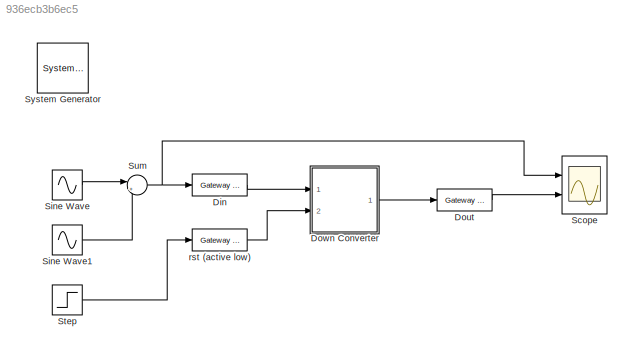
MODEL slx_936ecb3b6ec5
KIND model
CONFIG AbsTol = auto
CONFIG EnableMultiTasking = off
CONFIG FixedStep = auto
CONFIG MaxStep = auto
CONFIG MinStep = auto
CONFIG RelTol = 1e-3
CONFIG SampleTimeConstraint = Unconstrained
CONFIG SolverName = VariableStepDiscrete
CONFIG StartTime = 0.0
CONFIG StopTime = 500
BLOCK [Reference]  System Generator  REF=xbsIndex_r4/ System Generator
  AttributesFormatString = System\nGenerator
  Ports = []
  SourceBlock = xbsIndex_r4/ System Generator
  SourceType = Xilinx System Generator Block
  Tag = genX
  UserDataPersistent = on
BLOCK [Reference] Din  REF=hdlBasic/Gateway In
  Ports = [1, 1]
  SourceBlock = hdlBasic/Gateway In
  SourceType = Gateway In Block
BLOCK [Reference] Dout  REF=hdlBasic/Gateway Out
  Ports = [1, 1]
  SourceBlock = hdlBasic/Gateway Out
  SourceType = Gateway Out Block
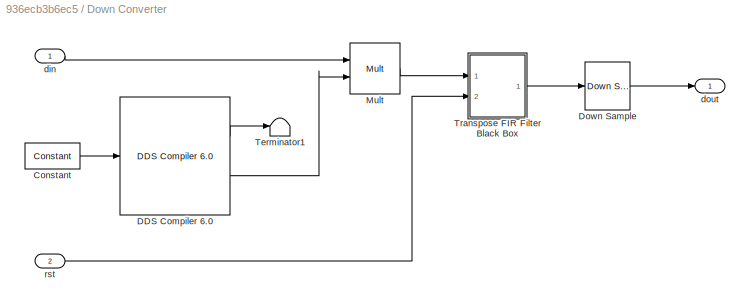
BLOCK [SubSystem] Down Converter
  Ports = [2, 1]
  RequestExecContextInheritance = off
BLOCK [Reference] Down Converter/Constant  REF=hdlBasic/Constant
  Ports = [0, 1]
  SourceBlock = hdlBasic/Constant
  SourceType = Constant Block Block
BLOCK [Reference] Down Converter/DDS Compiler 6.0   REF=hdlDSPIP/DDS Compiler 6.0 
  Ports = [1, 2]
  SourceBlock = hdlDSPIP/DDS Compiler 6.0
  SourceType = DDS Compiler 6.0 Block
BLOCK [Reference] Down Converter/Down Sample  REF=hdlBasic/Down Sample
  Ports = [1, 1]
  SourceBlock = hdlBasic/Down Sample
  SourceType = Down Sampler Block
BLOCK [Reference] Down Converter/Mult  REF=hdlBasic/Mult
  Ports = [2, 1]
  SourceBlock = hdlBasic/Mult
  SourceType = Multiplier Block
BLOCK [Terminator] Down Converter/Terminator1
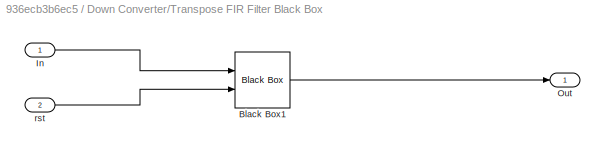
BLOCK [SubSystem] Down Converter/Transpose FIR Filter Black Box
  Ports = [2, 1]
  RequestExecContextInheritance = off
BLOCK [Reference] Down Converter/Transpose FIR Filter Black Box/Black Box1  REF=hdlBasic/Black Box
  Ports = [2, 1]
  SourceBlock = hdlBasic/Black Box
  SourceType = Black Box Block
BLOCK [Inport] Down Converter/Transpose FIR Filter Black Box/In
BLOCK [Outport] Down Converter/Transpose FIR Filter Black Box/Out
  VectorParamsAs1DForOutWhenUnconnected = off
BLOCK [Inport] Down Converter/Transpose FIR Filter Black Box/rst
  Port = 2
BLOCK [Inport] Down Converter/din
BLOCK [Outport] Down Converter/dout
  VectorParamsAs1DForOutWhenUnconnected = off
BLOCK [Inport] Down Converter/rst
  Port = 2
BLOCK [Scope] Scope
  Floating = off
  NumInputPorts = 2
  Ports = [2]
  ScopeSpecificationString = Simulink.scopes.TimeScopeBlockCfg('CurrentConfiguration', extmgr.ConfigurationSet(extmgr.Configuration('Core','General UI',true),extmgr.Configuration('Core','Source UI',true),extmgr.Configuration('Sources','WiredSimulink',true,'DataLoggingSaveFormat','StructureWithTime','DataLoggingLimitDataPoints',true,'DataLoggingDecimation','1','DataLoggingDecimateData',true),extmgr.Configuration('Visuals','Tim...<+2325ch>
BLOCK [Sin] Sine Wave
  Frequency = 2*pi*.31
  Ports = [0, 1]
  SampleTime = 1
BLOCK [Sin] Sine Wave1
  Frequency = 2*pi*.45
  Ports = [0, 1]
  SampleTime = 1
BLOCK [Step] Step
  SampleTime = 1
BLOCK [Sum] Sum
  Inputs = |++
  Ports = [2, 1]
  SaturateOnIntegerOverflow = on
BLOCK [Reference] rst (active low)  REF=hdlBasic/Gateway In
  Ports = [1, 1]
  SourceBlock = hdlBasic/Gateway In
  SourceType = Gateway In Block
LINE Din:1 -> Down Converter:1
LINE Dout:1 -> Scope:2
LINE Down Converter/Constant:1 -> Down Converter/DDS Compiler 6.0 :1
LINE Down Converter/DDS Compiler 6.0 :1 -> Down Converter/Terminator1:1
LINE Down Converter/DDS Compiler 6.0 :2 -> Down Converter/Mult:2
LINE Down Converter/Down Sample:1 -> Down Converter/dout:1
LINE Down Converter/Mult:1 -> Down Converter/Transpose FIR Filter Black Box:1
LINE Down Converter/Transpose FIR Filter Black Box/Black Box1:1 -> Down Converter/Transpose FIR Filter Black Box/Out:1
LINE Down Converter/Transpose FIR Filter Black Box/In:1 -> Down Converter/Transpose FIR Filter Black Box/Black Box1:1
LINE Down Converter/Transpose FIR Filter Black Box/rst:1 -> Down Converter/Transpose FIR Filter Black Box/Black Box1:2
LINE Down Converter/Transpose FIR Filter Black Box:1 -> Down Converter/Down Sample:1
LINE Down Converter/din:1 -> Down Converter/Mult:1
LINE Down Converter/rst:1 -> Down Converter/Transpose FIR Filter Black Box:2
LINE Down Converter:1 -> Dout:1
LINE Sine Wave1:1 -> Sum:2
LINE Sine Wave:1 -> Sum:1
LINE Step:1 -> rst (active low):1
NET Sum:1 -> Din:1, Scope:1
LINE rst (active low):1 -> Down Converter:2
note: NET lines group one-source signal fan-out (src -> all destinations, sorted); 1:1 wires keep LINE
